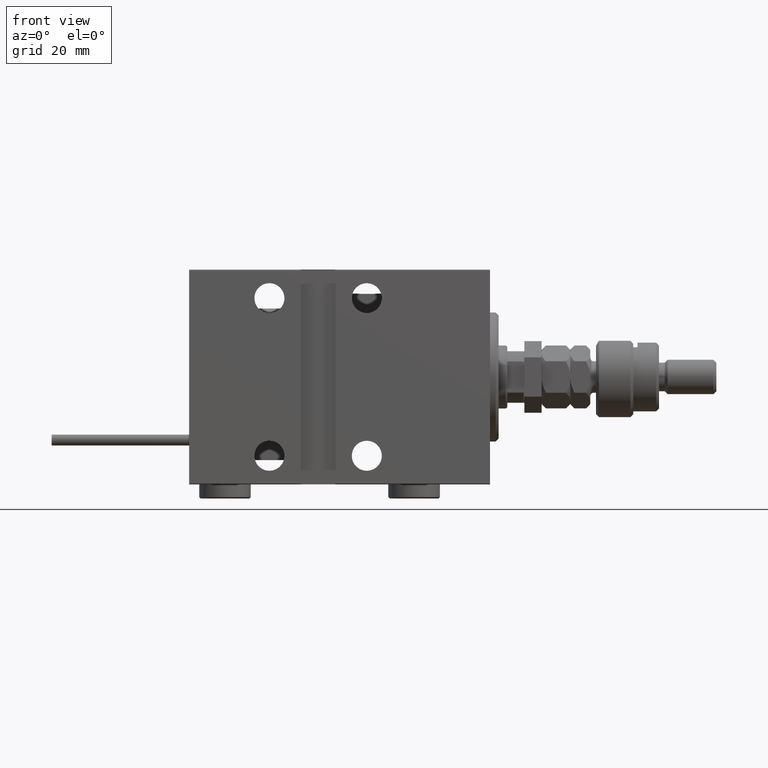
[diagram: clean part render]
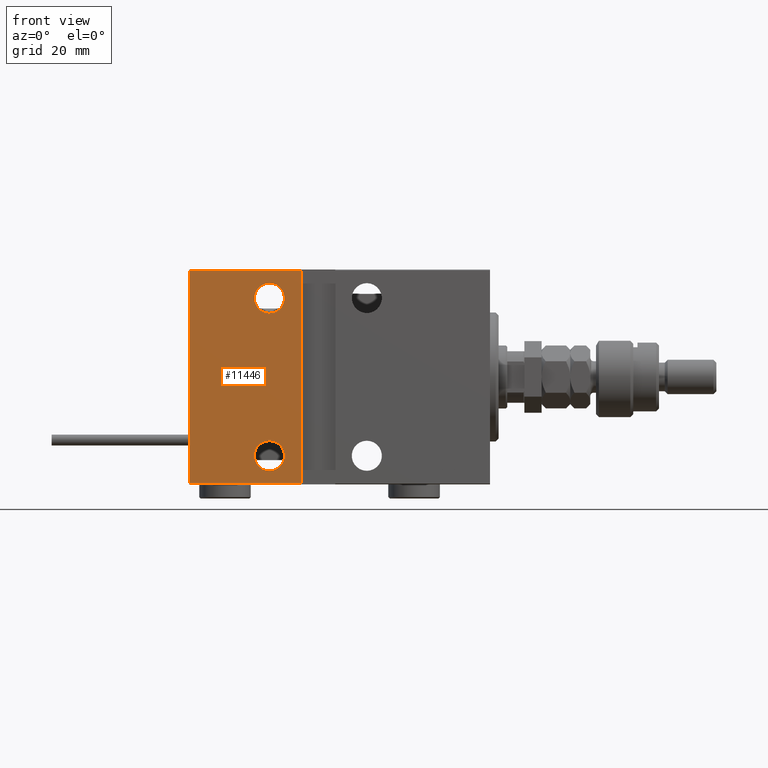
[diagram: same view with one face highlighted and labeled with its STEP entity id]
A machine part, front view. The second image highlights one B-rep face of the part: STEP entity #11446.
In plain terms, the highlighted planar face has unit normal (-0, 1, -0).
Its self-contained STEP definition (entity closure, byte-faithful):
#464 = EDGE_CURVE ( 'NONE', #18010, #15740, #42848, .T. ) ;
#670 = CARTESIAN_POINT ( 'NONE',  ( 77.00000000000001421, 27.50000000000000355, -32.74999999999998579 ) ) ;
#679 = VERTEX_POINT ( 'NONE', #670 ) ;
#1072 = LINE ( 'NONE', #42378, #39845 ) ;
#2016 = EDGE_CURVE ( 'NONE', #679, #9755, #50183, .T. ) ;
#2060 = LINE ( 'NONE', #48025, #54070 ) ;
#2429 = EDGE_CURVE ( 'NONE', #9901, #4421, #36277, .T. ) ;
#2749 = FACE_BOUND ( 'NONE', #38697, .T. ) ;
#4050 = CARTESIAN_POINT ( 'NONE',  ( 77.00000000000001421, 27.50000000000000355, -27.49999999999998579 ) ) ;
#4329 = DIRECTION ( 'NONE',  ( 0.000000000000000000, -1.000000000000000000, -9.251858538542970348E-17 ) ) ;
#4421 = VERTEX_POINT ( 'NONE', #26248 ) ;
#5241 = DIRECTION ( 'NONE',  ( 0.000000000000000000, -1.000000000000000000, -9.251858538542970348E-17 ) ) ;
#5904 = DIRECTION ( 'NONE',  ( -0.000000000000000000, 9.251858538542970348E-17, -1.000000000000000000 ) ) ;
#6461 = ORIENTED_EDGE ( 'NONE', *, *, #11511, .T. ) ;
#7664 = CIRCLE ( 'NONE', #13800, 5.250000000000004441 ) ;
#9755 = VERTEX_POINT ( 'NONE', #29833 ) ;
#9901 = VERTEX_POINT ( 'NONE', #37152 ) ;
#11446 = ADVANCED_FACE ( 'NONE', ( #2749, #16411, #45393 ), #19981, .F. ) ;
#11511 = EDGE_CURVE ( 'NONE', #31211, #26645, #1072, .T. ) ;
#11814 = CARTESIAN_POINT ( 'NONE',  ( 105.0000000000000000, 27.50000000000000355, -37.50000000000000711 ) ) ;
#12156 = CARTESIAN_POINT ( 'NONE',  ( 66.00000000000000000, 27.49999999999999645, 37.20000000000005969 ) ) ;
#13490 = AXIS2_PLACEMENT_3D ( 'NONE', #4050, #4329, #33325 ) ;
#13800 = AXIS2_PLACEMENT_3D ( 'NONE', #29589, #5241, #50904 ) ;
#14771 = ORIENTED_EDGE ( 'NONE', *, *, #16018, .T. ) ;
#15740 = VERTEX_POINT ( 'NONE', #18769 ) ;
#15863 = DIRECTION ( 'NONE',  ( 0.000000000000000000, -1.000000000000000000, -9.251858538542970348E-17 ) ) ;
#16018 = EDGE_CURVE ( 'NONE', #9755, #679, #51219, .T. ) ;
#16148 = ORIENTED_EDGE ( 'NONE', *, *, #37509, .F. ) ;
#16411 = FACE_BOUND ( 'NONE', #22515, .T. ) ;
#16430 = ORIENTED_EDGE ( 'NONE', *, *, #2016, .T. ) ;
#17346 = DIRECTION ( 'NONE',  ( 0.000000000000000000, -1.000000000000000000, -9.251858538542970348E-17 ) ) ;
#17685 = DIRECTION ( 'NONE',  ( -1.000000000000000000, 0.000000000000000000, 0.000000000000000000 ) ) ;
#18010 = VERTEX_POINT ( 'NONE', #20278 ) ;
#18769 = CARTESIAN_POINT ( 'NONE',  ( 66.00000000000000000, 27.50000000000000355, -37.20000000000002416 ) ) ;
#19765 = DIRECTION ( 'NONE',  ( 0.000000000000000000, -9.251858538542970348E-17, 1.000000000000000000 ) ) ;
#19981 = PLANE ( 'NONE',  #32841 ) ;
#20278 = CARTESIAN_POINT ( 'NONE',  ( 105.0000000000000000, 27.50000000000000355, -37.20000000000002416 ) ) ;
#22515 = EDGE_LOOP ( 'NONE', ( #37410, #25103 ) ) ;
#23085 = VECTOR ( 'NONE', #17685, 1000.000000000000000 ) ;
#24366 = EDGE_LOOP ( 'NONE', ( #31426, #39930, #16148, #6461 ) ) ;
#24998 = CARTESIAN_POINT ( 'NONE',  ( 77.00000000000001421, 27.50000000000000355, -27.49999999999998579 ) ) ;
#25097 = EDGE_CURVE ( 'NONE', #18010, #26645, #32598, .T. ) ;
#25103 = ORIENTED_EDGE ( 'NONE', *, *, #2429, .T. ) ;
#26248 = CARTESIAN_POINT ( 'NONE',  ( 77.00000000000001421, 27.49999999999999645, 32.75000000000002132 ) ) ;
#26645 = VERTEX_POINT ( 'NONE', #48371 ) ;
#27484 = VECTOR ( 'NONE', #19765, 1000.000000000000000 ) ;
#29589 = CARTESIAN_POINT ( 'NONE',  ( 77.00000000000001421, 27.49999999999999645, 27.50000000000002132 ) ) ;
#29833 = CARTESIAN_POINT ( 'NONE',  ( 77.00000000000001421, 27.50000000000000355, -22.24999999999998224 ) ) ;
#31211 = VERTEX_POINT ( 'NONE', #12156 ) ;
#31426 = ORIENTED_EDGE ( 'NONE', *, *, #25097, .F. ) ;
#32540 = DIRECTION ( 'NONE',  ( 0.000000000000000000, 9.251858538542970348E-17, -1.000000000000000000 ) ) ;
#32598 = LINE ( 'NONE', #11814, #27484 ) ;
#32841 = AXIS2_PLACEMENT_3D ( 'NONE', #53310, #15863, #32540 ) ;
#33325 = DIRECTION ( 'NONE',  ( 0.000000000000000000, 0.000000000000000000, -1.000000000000000000 ) ) ;
#33995 = EDGE_CURVE ( 'NONE', #4421, #9901, #7664, .T. ) ;
#36277 = CIRCLE ( 'NONE', #44121, 5.250000000000004441 ) ;
#37152 = CARTESIAN_POINT ( 'NONE',  ( 77.00000000000001421, 27.49999999999999645, 22.25000000000001776 ) ) ;
#37410 = ORIENTED_EDGE ( 'NONE', *, *, #33995, .T. ) ;
#37509 = EDGE_CURVE ( 'NONE', #31211, #15740, #2060, .T. ) ;
#38136 = DIRECTION ( 'NONE',  ( 0.000000000000000000, 0.000000000000000000, -1.000000000000000000 ) ) ;
#38446 = DIRECTION ( 'NONE',  ( 0.000000000000000000, 0.000000000000000000, -1.000000000000000000 ) ) ;
#38554 = DIRECTION ( 'NONE',  ( 1.000000000000000000, 0.000000000000000000, 0.000000000000000000 ) ) ;
#38697 = EDGE_LOOP ( 'NONE', ( #14771, #16430 ) ) ;
#39845 = VECTOR ( 'NONE', #38554, 1000.000000000000000 ) ;
#39930 = ORIENTED_EDGE ( 'NONE', *, *, #464, .T. ) ;
#42378 = CARTESIAN_POINT ( 'NONE',  ( 105.0000000000000000, 27.49999999999999645, 37.20000000000005258 ) ) ;
#42848 = LINE ( 'NONE', #47487, #23085 ) ;
#44121 = AXIS2_PLACEMENT_3D ( 'NONE', #51542, #50737, #38446 ) ;
#45393 = FACE_OUTER_BOUND ( 'NONE', #24366, .T. ) ;
#47487 = CARTESIAN_POINT ( 'NONE',  ( 105.0000000000000000, 27.50000000000000355, -37.20000000000002416 ) ) ;
#48025 = CARTESIAN_POINT ( 'NONE',  ( 66.00000000000000000, 27.50000000000000355, -37.50000000000001421 ) ) ;
#48371 = CARTESIAN_POINT ( 'NONE',  ( 105.0000000000000000, 27.49999999999999645, 37.20000000000005258 ) ) ;
#50183 = CIRCLE ( 'NONE', #13490, 5.250000000000000888 ) ;
#50737 = DIRECTION ( 'NONE',  ( 0.000000000000000000, -1.000000000000000000, -9.251858538542970348E-17 ) ) ;
#50904 = DIRECTION ( 'NONE',  ( 0.000000000000000000, 0.000000000000000000, -1.000000000000000000 ) ) ;
#51219 = CIRCLE ( 'NONE', #52964, 5.250000000000000888 ) ;
#51542 = CARTESIAN_POINT ( 'NONE',  ( 77.00000000000001421, 27.49999999999999645, 27.50000000000002132 ) ) ;
#52964 = AXIS2_PLACEMENT_3D ( 'NONE', #24998, #17346, #38136 ) ;
#53310 = CARTESIAN_POINT ( 'NONE',  ( 105.0000000000000000, 27.50000000000000355, -37.50000000000000711 ) ) ;
#54070 = VECTOR ( 'NONE', #5904, 1000.000000000000000 ) ;